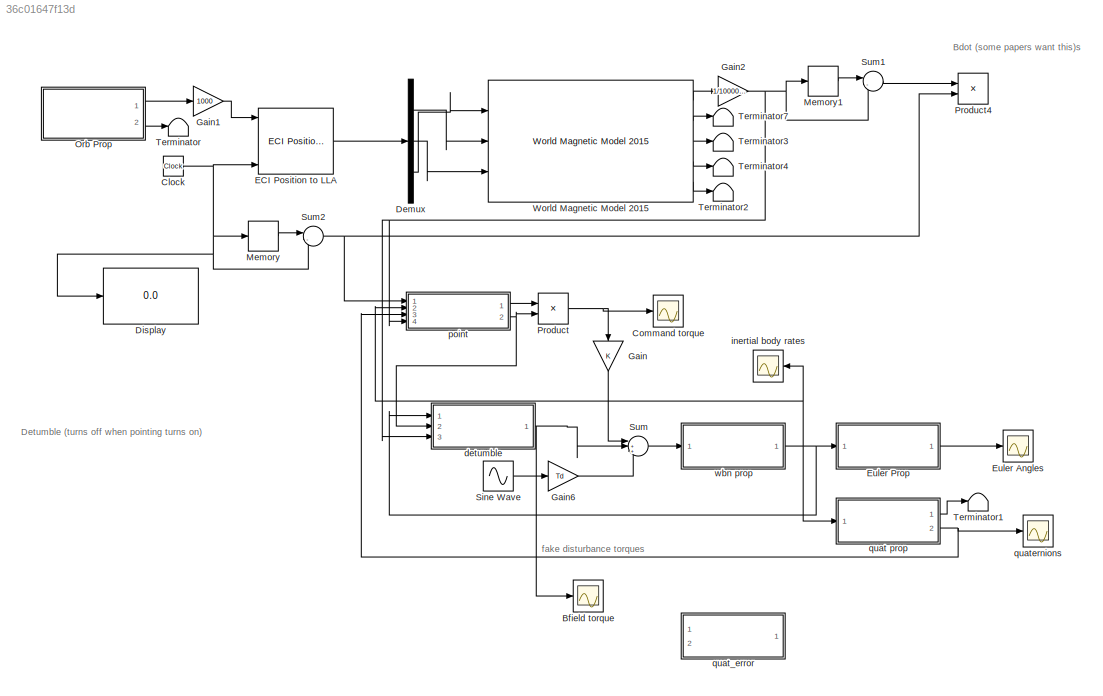
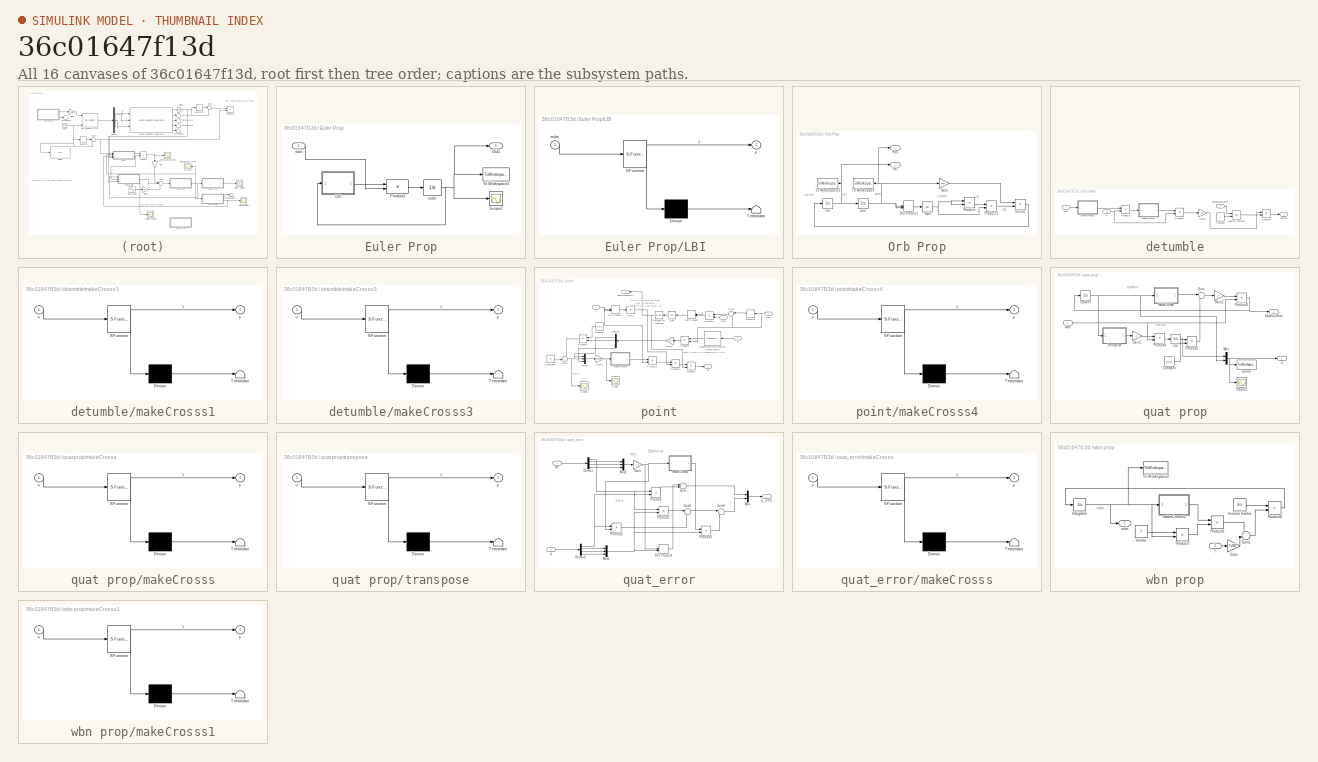
[diagram: thumbnail index - all 16 canvases of the model, root first then tree order]
MODEL slx_36c01647f13d
KIND model
CONFIG AbsTol = auto
CONFIG FixedStep = auto
CONFIG MaxStep = auto
CONFIG MinStep = auto
CONFIG RelTol = 1e-3
CONFIG SampleTimeConstraint = Unconstrained
CONFIG Solver = ode45
CONFIG SolverMode = Auto
CONFIG SolverName = ode45
CONFIG StartTime = 0.01
CONFIG StopTime = tprop
BLOCK [Scope] Bfield torque
  Ports = [1]
  ScopeSpecificationString = Simulink.scopes.TimeScopeBlockCfg('CurrentConfiguration', extmgr.ConfigurationSet(extmgr.Configuration('Core','General UI',true),extmgr.Configuration('Core','Source UI',true),extmgr.Configuration('Sources','WiredSimulink',true,'DataLoggingVariableName','ScopeData2'),extmgr.Configuration('Visuals','Time Domain',true,'SerializedDisplays',{struct('MinYLimReal','-0.000028','MaxYLimReal','0.000058','YL...<+1428ch>
BLOCK [Clock] Clock
BLOCK [Scope] Command torque
  Ports = [1]
  ScopeSpecificationString = Simulink.scopes.TimeScopeBlockCfg('CurrentConfiguration', extmgr.ConfigurationSet(extmgr.Configuration('Core','General UI',true),extmgr.Configuration('Core','Source UI',true),extmgr.Configuration('Sources','WiredSimulink',true,'DataLoggingVariableName','ScopeData1'),extmgr.Configuration('Visuals','Time Domain',true,'SerializedDisplays',{struct('MinYLimReal','-0.0036','MaxYLimReal','0.01275','YLabe...<+1463ch>
BLOCK [Demux] Demux
  DisplayOption = bar
  Outputs = 3
  Ports = [1, 3]
BLOCK [Display] Display
  Decimation = 1
  Ports = [1]
BLOCK [Reference] ECI Position to LLA  REF=aerolibtransform2/ECI Position to LLA
  AttributesFormatString = %<red>
  Ports = [6, 1]
  SourceBlock = aerolibtransform2/ECI Position to LLA
  SourceType = ECItoLLA
BLOCK [Scope] Euler Angles
  Ports = [1]
  ScopeSpecificationString = Simulink.scopes.TimeScopeBlockCfg('CurrentConfiguration', extmgr.ConfigurationSet(extmgr.Configuration('Core','General UI',true),extmgr.Configuration('Core','Source UI',true),extmgr.Configuration('Sources','WiredSimulink',true,'DataLoggingVariableName','ScopeData6'),extmgr.Configuration('Visuals','Time Domain',true,'SerializedDisplays',{struct('MinYLimReal','-79.20821','MaxYLimReal','20.09042','YL...<+1449ch>
BLOCK [SubSystem] Euler Prop
  Ports = [1, 1]
  RequestExecContextInheritance = off
  TreatAsAtomicUnit = on
  Variant = off
BLOCK [SubSystem] Euler Prop/LBI 
  ErrorFcn = Stateflow.Translate.translate
  PermitHierarchicalResolution = ExplicitOnly
  Ports = [1, 1]
  RequestExecContextInheritance = off
  SFBlockType = MATLAB Function
  TreatAsAtomicUnit = on
  Variant = off
BLOCK [Demux] Euler Prop/LBI / Demux 
  Outputs = 1
  Ports = [1, 1]
BLOCK [S-Function] Euler Prop/LBI / SFunction 
  EnableBusSupport = on
  FunctionName = sf_sfun
  PortCounts = [1 2]
  Ports = [1, 2]
  SFunctionDeploymentMode = off
  Tag = Stateflow S-Function BDot4 9
BLOCK [Terminator] Euler Prop/LBI / Terminator 
BLOCK [Inport] Euler Prop/LBI /euler
  IconDisplay = Port number
BLOCK [Outport] Euler Prop/LBI /y
  IconDisplay = Port number
BLOCK [Outport] Euler Prop/Out1
  IconDisplay = Port number
BLOCK [Product] Euler Prop/Product2
  InputSameDT = off
  Multiplication = Matrix(*)
  OutDataTypeStr = Inherit: Inherit via internal rule
  Ports = [2, 1]
  RndMeth = Floor
  SaturateOnIntegerOverflow = off
BLOCK [Scope] Euler Prop/Scope1
  Ports = [1]
  ScopeSpecificationString = C++SS(StrPVP('SaveName','ScopeData5'),StrPVP('LimitDataPoints','on'),StrPVP('DataFormat','Array'),StrPVP('Decimation','1'),StrPVP('BlockParamSampleInput','off'))
BLOCK [ToWorkspace] Euler Prop/To Workspace1
  FixptAsFi = on
  MaxDataPoints = inf
  Ports = [1]
  SampleTime = -1
  Save2DSignal = 3-D array (concatenate along third dimension)
  SaveFormat = Timeseries
  VariableName = euler
BLOCK [Integrator] Euler Prop/euler
  InitialCondition = euler0
  Ports = [1, 1]
BLOCK [Inport] Euler Prop/wbn
  IconDisplay = Port number
BLOCK [Gain] Gain
  OutDataTypeStr = Inherit: Inherit via internal rule
  ParamDataTypeStr = Inherit: Inherit via internal rule
  SaturateOnIntegerOverflow = off
BLOCK [Gain] Gain1
  Gain = 1000
  OutDataTypeStr = Inherit: Inherit via internal rule
  ParamDataTypeStr = Inherit: Inherit via internal rule
  SaturateOnIntegerOverflow = off
BLOCK [Gain] Gain2
  Gain = 1/1000000000
  OutDataTypeStr = Inherit: Inherit via internal rule
  ParamDataTypeStr = Inherit: Inherit via internal rule
  SaturateOnIntegerOverflow = off
BLOCK [Gain] Gain6
  Gain = Td
  OutDataTypeStr = Inherit: Inherit via internal rule
  ParamDataTypeStr = Inherit: Inherit via internal rule
  SaturateOnIntegerOverflow = off
BLOCK [Memory] Memory
  InheritSampleTime = on
  X0 = .0999999
BLOCK [Memory] Memory1
  InheritSampleTime = on
  X0 = [2.1e-9;-5.8e-9;1e-9]
BLOCK [SubSystem] Orb Prop
  Ports = [0, 2]
  RequestExecContextInheritance = off
  Variant = off
BLOCK [Product] Orb Prop/Divide
  InputSameDT = off
  Inputs = */
  OutDataTypeStr = Inherit: Inherit via internal rule
  Ports = [2, 1]
  RndMeth = Floor
  SaturateOnIntegerOverflow = off
BLOCK [DotProduct] Orb Prop/Dot Product
  OutDataTypeStr = Inherit: Inherit via internal rule
BLOCK [Gain] Orb Prop/Gain
  Gain = -mu
  OutDataTypeStr = Inherit: Inherit via internal rule
  ParamDataTypeStr = Inherit: Inherit via internal rule
  SaturateOnIntegerOverflow = off
BLOCK [Outport] Orb Prop/Pos
  IconDisplay = Port number
BLOCK [Product] Orb Prop/Product
  InputSameDT = off
  OutDataTypeStr = Inherit: Inherit via internal rule
  Ports = [2, 1]
  RndMeth = Floor
  SaturateOnIntegerOverflow = off
BLOCK [Product] Orb Prop/Product1
  InputSameDT = off
  OutDataTypeStr = Inherit: Inherit via internal rule
  Ports = [2, 1]
  RndMeth = Floor
  SaturateOnIntegerOverflow = off
BLOCK [Sqrt] Orb Prop/Sqrt
BLOCK [ToWorkspace] Orb Prop/To Workspace
  FixptAsFi = on
  MaxDataPoints = inf
  Ports = [1]
  SampleTime = -1
  Save2DSignal = 3-D array (concatenate along third dimension)
  SaveFormat = Timeseries
  VariableName = pos
BLOCK [ToWorkspace] Orb Prop/To Workspace3
  FixptAsFi = on
  MaxDataPoints = inf
  Ports = [1]
  SampleTime = -1
  Save2DSignal = 3-D array (concatenate along third dimension)
  SaveFormat = Timeseries
  VariableName = vel
BLOCK [Outport] Orb Prop/Vel
  IconDisplay = Port number
  Port = 2
BLOCK [Integrator] Orb Prop/pos
  InitialCondition = rvect
  Ports = [1, 1]
BLOCK [Integrator] Orb Prop/vel
  InitialCondition = vvect
  Ports = [1, 1]
BLOCK [Product] Product
  InputSameDT = off
  OutDataTypeStr = Inherit: Inherit via internal rule
  Ports = [2, 1]
  RndMeth = Floor
  SaturateOnIntegerOverflow = off
BLOCK [Product] Product4
  InputSameDT = off
  Inputs = */
  OutDataTypeStr = Inherit: Inherit via internal rule
  Ports = [2, 1]
  RndMeth = Floor
  SaturateOnIntegerOverflow = off
BLOCK [Sin] Sine Wave
  Amplitude = 1e-8
  Frequency = 100/T
  Ports = [0, 1]
  SampleTime = 0
BLOCK [Sum] Sum
  IconShape = round
  InputSameDT = off
  Inputs = |+++
  OutDataTypeStr = Inherit: Inherit via internal rule
  Ports = [3, 1]
  SaturateOnIntegerOverflow = off
BLOCK [Sum] Sum1
  IconShape = round
  InputSameDT = off
  Inputs = |-+
  OutDataTypeStr = Inherit: Inherit via internal rule
  Ports = [2, 1]
  SaturateOnIntegerOverflow = off
BLOCK [Sum] Sum2
  IconShape = round
  InputSameDT = off
  Inputs = |-+
  OutDataTypeStr = Inherit: Inherit via internal rule
  Ports = [2, 1]
  SaturateOnIntegerOverflow = off
BLOCK [Terminator] Terminator
BLOCK [Terminator] Terminator1
BLOCK [Terminator] Terminator2
BLOCK [Terminator] Terminator3
BLOCK [Terminator] Terminator4
BLOCK [Terminator] Terminator7
BLOCK [Reference] World Magnetic Model 2015  REF=aerolibgravity2/World Magnetic Model 2015
  Ports = [3, 5]
  SourceBlock = aerolibgravity2/World Magnetic Model 2015
  SourceType = WorldMagneticModel2015
BLOCK [SubSystem] detumble
  Ports = [3, 1]
  RequestExecContextInheritance = off
  Variant = off
BLOCK [Constant] detumble/Constant
BLOCK [Gain] detumble/Gain3
  Gain = -kd
  Multiplication = Matrix(K*u)
  OutDataTypeStr = Inherit: Inherit via internal rule
  ParamDataTypeStr = Inherit: Inherit via internal rule
  SaturateOnIntegerOverflow = off
BLOCK [Logic] detumble/Logical Operator
  AllPortsSameDT = off
  Operator = XOR
  OutDataTypeStr = boolean
  Ports = [2, 1]
BLOCK [Product] detumble/Product1
  InputSameDT = off
  Multiplication = Matrix(*)
  OutDataTypeStr = Inherit: Inherit via internal rule
  Ports = [2, 1]
  RndMeth = Floor
  SaturateOnIntegerOverflow = off
BLOCK [Product] detumble/Product2
  InputSameDT = off
  Multiplication = Matrix(*)
  OutDataTypeStr = Inherit: Inherit via internal rule
  Ports = [2, 1]
  RndMeth = Floor
  SaturateOnIntegerOverflow = off
BLOCK [Product] detumble/Product6
  InputSameDT = off
  OutDataTypeStr = Inherit: Inherit via internal rule
  Ports = [2, 1]
  RndMeth = Floor
  SaturateOnIntegerOverflow = off
BLOCK [Outport] detumble/Tbfield
  IconDisplay = Port number
BLOCK [Inport] detumble/b
  IconDisplay = Port number
  Port = 3
BLOCK [Inport] detumble/detumbleOnOff
  IconDisplay = Port number
  Port = 2
BLOCK [SubSystem] detumble/makeCrosss1
  ErrorFcn = Stateflow.Translate.translate
  PermitHierarchicalResolution = ExplicitOnly
  Ports = [1, 1]
  RequestExecContextInheritance = off
  SFBlockType = MATLAB Function
  TreatAsAtomicUnit = on
  Variant = off
BLOCK [Demux] detumble/makeCrosss1/ Demux 
  Outputs = 1
  Ports = [1, 1]
BLOCK [S-Function] detumble/makeCrosss1/ SFunction 
  EnableBusSupport = on
  FunctionName = sf_sfun
  PortCounts = [1 2]
  Ports = [1, 2]
  SFunctionDeploymentMode = off
  Tag = Stateflow S-Function BDot4 1
BLOCK [Terminator] detumble/makeCrosss1/ Terminator 
BLOCK [Inport] detumble/makeCrosss1/u
  IconDisplay = Port number
BLOCK [Outport] detumble/makeCrosss1/y
  IconDisplay = Port number
BLOCK [SubSystem] detumble/makeCrosss3
  ErrorFcn = Stateflow.Translate.translate
  PermitHierarchicalResolution = ExplicitOnly
  Ports = [1, 1]
  RequestExecContextInheritance = off
  SFBlockType = MATLAB Function
  TreatAsAtomicUnit = on
  Variant = off
BLOCK [Demux] detumble/makeCrosss3/ Demux 
  Outputs = 1
  Ports = [1, 1]
BLOCK [S-Function] detumble/makeCrosss3/ SFunction 
  EnableBusSupport = on
  FunctionName = sf_sfun
  PortCounts = [1 2]
  Ports = [1, 2]
  SFunctionDeploymentMode = off
  Tag = Stateflow S-Function BDot4 8
BLOCK [Terminator] detumble/makeCrosss3/ Terminator 
BLOCK [Inport] detumble/makeCrosss3/u
  IconDisplay = Port number
BLOCK [Outport] detumble/makeCrosss3/y
  IconDisplay = Port number
BLOCK [Inport] detumble/wbn
  IconDisplay = Port number
BLOCK [Scope] inertial body rates
  Ports = [1]
  ScopeSpecificationString = Simulink.scopes.TimeScopeBlockCfg('CurrentConfiguration', extmgr.ConfigurationSet(extmgr.Configuration('Core','General UI',true),extmgr.Configuration('Core','Source UI',true),extmgr.Configuration('Sources','WiredSimulink',true,'DataLoggingVariableName','ScopeData1'),extmgr.Configuration('Visuals','Time Domain',true,'SerializedDisplays',{struct('MinYLimReal','-0.09841','MaxYLimReal','0.04872','YLab...<+1465ch>
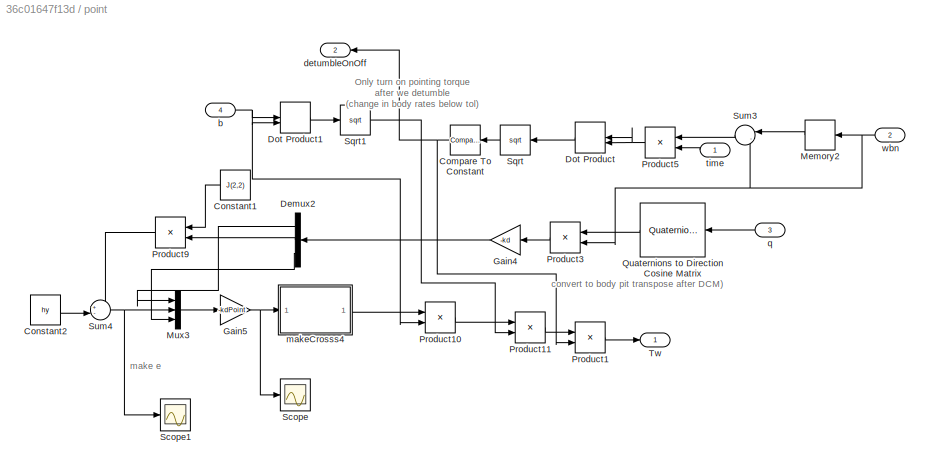
BLOCK [SubSystem] point
  Ports = [4, 2]
  RequestExecContextInheritance = off
  Variant = off
BLOCK [Reference] point/Compare To Constant  REF=simulink/Logic and Bit
Operations/Compare
To Constant
  Ports = [1, 1]
  SourceBlock = simulink/Logic and Bit\nOperations/Compare\nTo Constant
  SourceType = Compare To Constant
BLOCK [Constant] point/Constant1
  Value = J(2,2)
BLOCK [Constant] point/Constant2
  Value = hy
BLOCK [Demux] point/Demux2
  DisplayOption = bar
  Outputs = 3
  Ports = [1, 3]
BLOCK [DotProduct] point/Dot Product
  OutDataTypeStr = Inherit: Inherit via internal rule
BLOCK [DotProduct] point/Dot Product1
  OutDataTypeStr = Inherit: Inherit via internal rule
BLOCK [Gain] point/Gain4
  Gain = -kd
  Multiplication = Matrix(K*u)
  OutDataTypeStr = Inherit: Inherit via internal rule
  ParamDataTypeStr = Inherit: Inherit via internal rule
  SaturateOnIntegerOverflow = off
BLOCK [Gain] point/Gain5
  Gain = -kdPoint
  Multiplication = Matrix(K*u)
  OutDataTypeStr = Inherit: Inherit via internal rule
  ParamDataTypeStr = Inherit: Inherit via internal rule
  SaturateOnIntegerOverflow = off
BLOCK [Memory] point/Memory2
  InheritSampleTime = on
  X0 = wbn0+[.001;.001;.001]
BLOCK [Mux] point/Mux3
  DisplayOption = bar
  Inputs = 3
  Ports = [3, 1]
BLOCK [Product] point/Product1
  InputSameDT = off
  Inputs = **
  OutDataTypeStr = Inherit: Inherit via internal rule
  Ports = [2, 1]
  RndMeth = Floor
  SaturateOnIntegerOverflow = off
BLOCK [Product] point/Product10
  InputSameDT = off
  Multiplication = Matrix(*)
  OutDataTypeStr = Inherit: Inherit via internal rule
  Ports = [2, 1]
  RndMeth = Floor
  SaturateOnIntegerOverflow = off
BLOCK [Product] point/Product11
  InputSameDT = off
  Inputs = */
  OutDataTypeStr = Inherit: Inherit via internal rule
  Ports = [2, 1]
  RndMeth = Floor
  SaturateOnIntegerOverflow = off
BLOCK [Product] point/Product3
  InputSameDT = off
  Multiplication = Matrix(*)
  OutDataTypeStr = Inherit: Inherit via internal rule
  Ports = [2, 1]
  RndMeth = Floor
  SaturateOnIntegerOverflow = off
BLOCK [Product] point/Product5
  InputSameDT = off
  Inputs = */
  OutDataTypeStr = Inherit: Inherit via internal rule
  Ports = [2, 1]
  RndMeth = Floor
  SaturateOnIntegerOverflow = off
BLOCK [Product] point/Product9
  InputSameDT = off
  OutDataTypeStr = Inherit: Inherit via internal rule
  Ports = [2, 1]
  RndMeth = Floor
  SaturateOnIntegerOverflow = off
BLOCK [Reference] point/Quaternions to Direction Cosine Matrix  REF=aerolibtransform2/Quaternions to 
Direction Cosine Matrix
  Ports = [1, 1]
  SourceBlock = aerolibtransform2/Quaternions to \nDirection Cosine Matrix
  SourceType = Quaternion2DCM
BLOCK [Scope] point/Scope
  Ports = [1]
  ScopeSpecificationString = C++SS(StrPVP('SaveName','ScopeData1'))
BLOCK [Scope] point/Scope1
  Ports = [1]
  ScopeSpecificationString = C++SS(StrPVP('SaveName','ScopeData2'))
BLOCK [Sqrt] point/Sqrt
BLOCK [Sqrt] point/Sqrt1
BLOCK [Sum] point/Sum3
  IconShape = round
  InputSameDT = off
  Inputs = |-+
  OutDataTypeStr = Inherit: Inherit via internal rule
  Ports = [2, 1]
  SaturateOnIntegerOverflow = off
BLOCK [Sum] point/Sum4
  IconShape = round
  InputSameDT = off
  Inputs = +-|
  OutDataTypeStr = Inherit: Inherit via internal rule
  Ports = [2, 1]
  SaturateOnIntegerOverflow = off
BLOCK [Outport] point/Tw
  IconDisplay = Port number
BLOCK [Inport] point/b
  IconDisplay = Port number
  Port = 4
BLOCK [Outport] point/detumbleOnOff
  IconDisplay = Port number
  Port = 2
BLOCK [SubSystem] point/makeCrosss4
  ErrorFcn = Stateflow.Translate.translate
  PermitHierarchicalResolution = ExplicitOnly
  Ports = [1, 1]
  RequestExecContextInheritance = off
  SFBlockType = MATLAB Function
  TreatAsAtomicUnit = on
  Variant = off
BLOCK [Demux] point/makeCrosss4/ Demux 
  Outputs = 1
  Ports = [1, 1]
BLOCK [S-Function] point/makeCrosss4/ SFunction 
  EnableBusSupport = on
  FunctionName = sf_sfun
  PortCounts = [1 2]
  Ports = [1, 2]
  SFunctionDeploymentMode = off
  Tag = Stateflow S-Function BDot4 7
BLOCK [Terminator] point/makeCrosss4/ Terminator 
BLOCK [Inport] point/makeCrosss4/u
  IconDisplay = Port number
BLOCK [Outport] point/makeCrosss4/y
  IconDisplay = Port number
BLOCK [Inport] point/q
  IconDisplay = Port number
  Port = 3
BLOCK [Inport] point/time
  IconDisplay = Port number
BLOCK [Inport] point/wbn
  IconDisplay = Port number
  Port = 2
BLOCK [SubSystem] quat prop
  Ports = [1, 2]
  RequestExecContextInheritance = off
  Variant = off
BLOCK [Constant] quat prop/Constant
  Value = eye(3)
BLOCK [Outport] quat prop/EpsilonDots
  IconDisplay = Port number
BLOCK [Gain] quat prop/Gain1
  Gain = -.5
  OutDataTypeStr = Inherit: Inherit via internal rule
  ParamDataTypeStr = Inherit: Inherit via internal rule
  SaturateOnIntegerOverflow = off
BLOCK [Gain] quat prop/Gain2
  Gain = .5
  OutDataTypeStr = Inherit: Inherit via internal rule
  ParamDataTypeStr = Inherit: Inherit via internal rule
  SaturateOnIntegerOverflow = off
BLOCK [Mux] quat prop/Mux
  DisplayOption = bar
  Inputs = 2
  Ports = [2, 1]
BLOCK [Product] quat prop/Product3
  InputSameDT = off
  Multiplication = Matrix(*)
  OutDataTypeStr = Inherit: Inherit via internal rule
  Ports = [2, 1]
  RndMeth = Floor
  SaturateOnIntegerOverflow = off
BLOCK [Product] quat prop/Product4
  InputSameDT = off
  Multiplication = Matrix(*)
  OutDataTypeStr = Inherit: Inherit via internal rule
  Ports = [2, 1]
  RndMeth = Floor
  SaturateOnIntegerOverflow = off
BLOCK [Product] quat prop/Product5
  InputSameDT = off
  OutDataTypeStr = Inherit: Inherit via internal rule
  Ports = [2, 1]
  RndMeth = Floor
  SaturateOnIntegerOverflow = off
BLOCK [Scope] quat prop/Scope2
  Ports = [1]
  ScopeSpecificationString = C++SS(StrPVP('SaveName','ScopeData1'),StrPVP('LimitDataPoints','on'),StrPVP('DataFormat','Array'),StrPVP('Decimation','1'),StrPVP('BlockParamSampleInput','off'))
BLOCK [Sum] quat prop/Sum
  IconShape = round
  InputSameDT = off
  Inputs = |++
  OutDataTypeStr = Inherit: Inherit via internal rule
  Ports = [2, 1]
  SaturateOnIntegerOverflow = off
BLOCK [Integrator] quat prop/epsilon
  InitialCondition = epsilon0
  Ports = [1, 1]
BLOCK [Integrator] quat prop/eta
  InitialCondition = eta0
  Ports = [1, 1]
BLOCK [SubSystem] quat prop/makeCrosss
  ErrorFcn = Stateflow.Translate.translate
  PermitHierarchicalResolution = ExplicitOnly
  Ports = [1, 1]
  RequestExecContextInheritance = off
  SFBlockType = MATLAB Function
  TreatAsAtomicUnit = on
  Variant = off
BLOCK [Demux] quat prop/makeCrosss/ Demux 
  Outputs = 1
  Ports = [1, 1]
BLOCK [S-Function] quat prop/makeCrosss/ SFunction 
  EnableBusSupport = on
  FunctionName = sf_sfun
  PortCounts = [1 2]
  Ports = [1, 2]
  SFunctionDeploymentMode = off
  Tag = Stateflow S-Function BDot4 3
BLOCK [Terminator] quat prop/makeCrosss/ Terminator 
BLOCK [Inport] quat prop/makeCrosss/u
  IconDisplay = Port number
BLOCK [Outport] quat prop/makeCrosss/y
  IconDisplay = Port number
BLOCK [Outport] quat prop/q
  IconDisplay = Port number
  Port = 2
BLOCK [ToWorkspace] quat prop/quats
  FixptAsFi = on
  MaxDataPoints = inf
  Ports = [1]
  SampleTime = -1
  Save2DSignal = 3-D array (concatenate along third dimension)
  SaveFormat = Timeseries
  VariableName = quat
BLOCK [SubSystem] quat prop/transpose
  ErrorFcn = Stateflow.Translate.translate
  PermitHierarchicalResolution = ExplicitOnly
  Ports = [1, 1]
  RequestExecContextInheritance = off
  SFBlockType = MATLAB Function
  TreatAsAtomicUnit = on
  Variant = off
BLOCK [Demux] quat prop/transpose/ Demux 
  Outputs = 1
  Ports = [1, 1]
BLOCK [S-Function] quat prop/transpose/ SFunction 
  EnableBusSupport = on
  FunctionName = sf_sfun
  PortCounts = [1 2]
  Ports = [1, 2]
  SFunctionDeploymentMode = off
  Tag = Stateflow S-Function BDot4 6
BLOCK [Terminator] quat prop/transpose/ Terminator 
BLOCK [Inport] quat prop/transpose/u
  IconDisplay = Port number
BLOCK [Outport] quat prop/transpose/y
  IconDisplay = Port number
BLOCK [Inport] quat prop/wbn
  IconDisplay = Port number
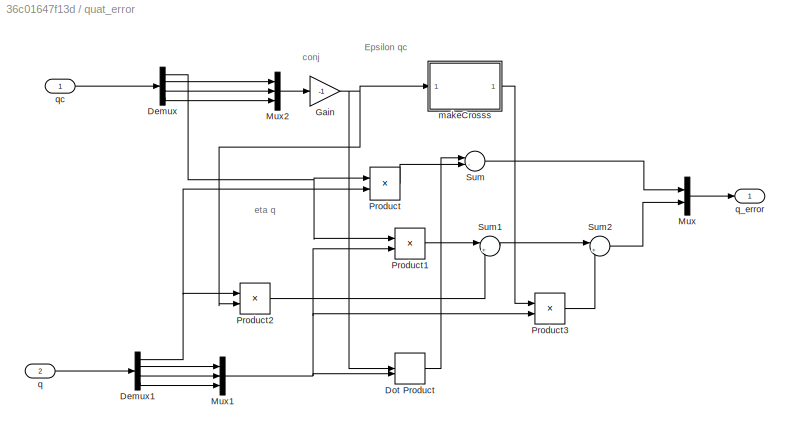
BLOCK [SubSystem] quat_error
  Ports = [2, 1]
  RequestExecContextInheritance = off
  Variant = off
BLOCK [Demux] quat_error/Demux
  DisplayOption = bar
  Ports = [1, 4]
BLOCK [Demux] quat_error/Demux1
  DisplayOption = bar
  Ports = [1, 4]
BLOCK [DotProduct] quat_error/Dot Product
  OutDataTypeStr = Inherit: Inherit via internal rule
BLOCK [Gain] quat_error/Gain
  Gain = -1
  OutDataTypeStr = Inherit: Inherit via internal rule
  ParamDataTypeStr = Inherit: Inherit via internal rule
  SaturateOnIntegerOverflow = off
BLOCK [Mux] quat_error/Mux
  DisplayOption = bar
  Inputs = 2
  Ports = [2, 1]
BLOCK [Mux] quat_error/Mux1
  DisplayOption = bar
  Inputs = 3
  Ports = [3, 1]
BLOCK [Mux] quat_error/Mux2
  DisplayOption = bar
  Inputs = 3
  Ports = [3, 1]
BLOCK [Product] quat_error/Product
  InputSameDT = off
  OutDataTypeStr = Inherit: Inherit via internal rule
  Ports = [2, 1]
  RndMeth = Floor
  SaturateOnIntegerOverflow = off
BLOCK [Product] quat_error/Product1
  InputSameDT = off
  OutDataTypeStr = Inherit: Inherit via internal rule
  Ports = [2, 1]
  RndMeth = Floor
  SaturateOnIntegerOverflow = off
BLOCK [Product] quat_error/Product2
  InputSameDT = off
  OutDataTypeStr = Inherit: Inherit via internal rule
  Ports = [2, 1]
  RndMeth = Floor
  SaturateOnIntegerOverflow = off
BLOCK [Product] quat_error/Product3
  InputSameDT = off
  Multiplication = Matrix(*)
  OutDataTypeStr = Inherit: Inherit via internal rule
  Ports = [2, 1]
  RndMeth = Floor
  SaturateOnIntegerOverflow = off
BLOCK [Sum] quat_error/Sum
  IconShape = round
  InputSameDT = off
  Inputs = |-+
  OutDataTypeStr = Inherit: Inherit via internal rule
  Ports = [2, 1]
  SaturateOnIntegerOverflow = off
BLOCK [Sum] quat_error/Sum1
  IconShape = round
  InputSameDT = off
  Inputs = |++
  OutDataTypeStr = Inherit: Inherit via internal rule
  Ports = [2, 1]
  SaturateOnIntegerOverflow = off
BLOCK [Sum] quat_error/Sum2
  IconShape = round
  InputSameDT = off
  Inputs = |++
  OutDataTypeStr = Inherit: Inherit via internal rule
  Ports = [2, 1]
  SaturateOnIntegerOverflow = off
BLOCK [SubSystem] quat_error/makeCrosss
  ErrorFcn = Stateflow.Translate.translate
  PermitHierarchicalResolution = ExplicitOnly
  Ports = [1, 1]
  RequestExecContextInheritance = off
  SFBlockType = MATLAB Function
  TreatAsAtomicUnit = on
  Variant = off
BLOCK [Demux] quat_error/makeCrosss/ Demux 
  Outputs = 1
  Ports = [1, 1]
BLOCK [S-Function] quat_error/makeCrosss/ SFunction 
  EnableBusSupport = on
  FunctionName = sf_sfun
  PortCounts = [1 2]
  Ports = [1, 2]
  SFunctionDeploymentMode = off
  Tag = Stateflow S-Function BDot4 2
BLOCK [Terminator] quat_error/makeCrosss/ Terminator 
BLOCK [Inport] quat_error/makeCrosss/u
  IconDisplay = Port number
BLOCK [Outport] quat_error/makeCrosss/y
  IconDisplay = Port number
BLOCK [Inport] quat_error/q
  IconDisplay = Port number
  Port = 2
BLOCK [Outport] quat_error/q_error
  IconDisplay = Port number
BLOCK [Inport] quat_error/qc
  IconDisplay = Port number
BLOCK [Scope] quaternions
  Ports = [1]
  ScopeSpecificationString = Simulink.scopes.TimeScopeBlockCfg('CurrentConfiguration', extmgr.ConfigurationSet(extmgr.Configuration('Core','General UI',true),extmgr.Configuration('Core','Source UI',true),extmgr.Configuration('Sources','WiredSimulink',true,'DataLoggingVariableName','ScopeData3'),extmgr.Configuration('Visuals','Time Domain',true,'SerializedDisplays',{struct('MinYLimReal','-1.22706','MaxYLimReal','1.22156','YLab...<+1490ch>
BLOCK [SubSystem] wbn prop
  Ports = [1, 1]
  RequestExecContextInheritance = off
  Variant = off
BLOCK [Gain] wbn prop/Gain
  Gain = TcON
  OutDataTypeStr = Inherit: Inherit via internal rule
  ParamDataTypeStr = Inherit: Inherit via internal rule
  SaturateOnIntegerOverflow = off
BLOCK [Constant] wbn prop/Inertia
  Value = J
BLOCK [Integrator] wbn prop/Integrator
  InitialCondition = wbn0
  Ports = [1, 1]
BLOCK [Constant] wbn prop/Inverse Inertia
  Value = Jinv
BLOCK [Product] wbn prop/Product6
  InputSameDT = off
  Multiplication = Matrix(*)
  OutDataTypeStr = Inherit: Inherit via internal rule
  Ports = [2, 1]
  RndMeth = Floor
  SaturateOnIntegerOverflow = off
BLOCK [Product] wbn prop/Product7
  InputSameDT = off
  Multiplication = Matrix(*)
  OutDataTypeStr = Inherit: Inherit via internal rule
  Ports = [2, 1]
  RndMeth = Floor
  SaturateOnIntegerOverflow = off
BLOCK [Product] wbn prop/Product8
  InputSameDT = off
  Multiplication = Matrix(*)
  OutDataTypeStr = Inherit: Inherit via internal rule
  Ports = [2, 1]
  RndMeth = Floor
  SaturateOnIntegerOverflow = off
BLOCK [Sum] wbn prop/Sum1
  IconShape = round
  InputSameDT = off
  Inputs = +-
  OutDataTypeStr = Inherit: Inherit via internal rule
  Ports = [2, 1]
  SaturateOnIntegerOverflow = off
BLOCK [Inport] wbn prop/T
  IconDisplay = Port number
BLOCK [ToWorkspace] wbn prop/To Workspace2
  FixptAsFi = on
  MaxDataPoints = inf
  Ports = [1]
  SampleTime = -1
  Save2DSignal = 3-D array (concatenate along third dimension)
  SaveFormat = Timeseries
  VariableName = wbn
BLOCK [SubSystem] wbn prop/makeCrosss1
  ErrorFcn = Stateflow.Translate.translate
  PermitHierarchicalResolution = ExplicitOnly
  Ports = [1, 1]
  RequestExecContextInheritance = off
  SFBlockType = MATLAB Function
  TreatAsAtomicUnit = on
  Variant = off
BLOCK [Demux] wbn prop/makeCrosss1/ Demux 
  Outputs = 1
  Ports = [1, 1]
BLOCK [S-Function] wbn prop/makeCrosss1/ SFunction 
  EnableBusSupport = on
  FunctionName = sf_sfun
  PortCounts = [1 2]
  Ports = [1, 2]
  SFunctionDeploymentMode = off
  Tag = Stateflow S-Function BDot4 4
BLOCK [Terminator] wbn prop/makeCrosss1/ Terminator 
BLOCK [Inport] wbn prop/makeCrosss1/u
  IconDisplay = Port number
BLOCK [Outport] wbn prop/makeCrosss1/y
  IconDisplay = Port number
BLOCK [Outport] wbn prop/wbn
  IconDisplay = Port number
ANNOTATION (root): Bdot (some papers want this)s
ANNOTATION (root): Detumble (turns off when pointing turns on)
ANNOTATION (root): fake disturbance torques
ANNOTATION Orb Prop: accel
ANNOTATION Orb Prop: pos
ANNOTATION Orb Prop: r norm
ANNOTATION Orb Prop: r^2
ANNOTATION Orb Prop: r^3
ANNOTATION Orb Prop: vel
ANNOTATION point: Only turn on pointing torque after we detumble (change in body rates below tol)
ANNOTATION point: convert to body pit transpose after DCM)
ANNOTATION point: make e
ANNOTATION quat prop: epsilon
ANNOTATION quat prop: eta dot
ANNOTATION quat_error: Epsilon qc
ANNOTATION quat_error: conj
ANNOTATION quat_error: eta q
ANNOTATION wbn prop: wbn
NET Clock:1 -> Display:1, ECI Position to LLA:6, Memory:1, Sum2:2
LINE Demux:1 -> World Magnetic Model 2015:2
LINE Demux:2 -> World Magnetic Model 2015:3
LINE Demux:3 -> World Magnetic Model 2015:1
LINE ECI Position to LLA:1 -> Demux:1
LINE Euler Prop/LBI :1 -> Euler Prop/Product2:1
LINE Euler Prop/Product2:1 -> Euler Prop/euler:1
NET Euler Prop/euler:1 -> Euler Prop/LBI :1, Euler Prop/Out1:1, Euler Prop/Scope1:1, Euler Prop/To Workspace1:1
LINE Euler Prop/wbn:1 -> Euler Prop/Product2:2
LINE Euler Prop:1 -> Euler Angles:1
LINE Gain1:1 -> ECI Position to LLA:1
NET Gain2:1 -> Memory1:1, Sum1:2, detumble:3, point:4
LINE Gain6:1 -> Sum:3
LINE Gain:1 -> Sum:1
LINE Memory1:1 -> Sum1:1
LINE Memory:1 -> Sum2:1
LINE Orb Prop/Divide:1 -> Orb Prop/vel:1
LINE Orb Prop/Dot Product:1 -> Orb Prop/Sqrt:1
LINE Orb Prop/Gain:1 -> Orb Prop/Divide:1
LINE Orb Prop/Product1:1 -> Orb Prop/Divide:2
LINE Orb Prop/Product:1 -> Orb Prop/Product1:1
NET Orb Prop/Sqrt:1 -> Orb Prop/Product1:2, Orb Prop/Product:1, Orb Prop/Product:2
NET Orb Prop/pos:1 -> Orb Prop/Dot Product:1, Orb Prop/Dot Product:2, Orb Prop/Gain:1, Orb Prop/Pos:1, Orb Prop/To Workspace:1
NET Orb Prop/vel:1 -> Orb Prop/To Workspace3:1, Orb Prop/Vel:1, Orb Prop/pos:1
LINE Orb Prop:1 -> Gain1:1
LINE Orb Prop:2 -> Terminator:1
NET Product:1 -> Command torque:1, Gain:1
LINE Sine Wave:1 -> Gain6:1
LINE Sum1:1 -> Product4:1
NET Sum2:1 -> Product4:2, point:1
LINE Sum:1 -> wbn prop:1
LINE World Magnetic Model 2015:1 -> Gain2:1
LINE World Magnetic Model 2015:2 -> Terminator7:1
LINE World Magnetic Model 2015:3 -> Terminator3:1
LINE World Magnetic Model 2015:4 -> Terminator4:1
LINE World Magnetic Model 2015:5 -> Terminator2:1
LINE detumble/Constant:1 -> detumble/Logical Operator:2
LINE detumble/Gain3:1 -> detumble/Product6:1
LINE detumble/Logical Operator:1 -> detumble/Product6:2
LINE detumble/Product1:1 -> detumble/makeCrosss1:1
LINE detumble/Product2:1 -> detumble/Gain3:1
LINE detumble/Product6:1 -> detumble/Tbfield:1
NET detumble/b:1 -> detumble/Product1:2, detumble/Product2:2
LINE detumble/detumbleOnOff:1 -> detumble/Logical Operator:1
LINE detumble/makeCrosss1:1 -> detumble/Product2:1
LINE detumble/makeCrosss3:1 -> detumble/Product1:1
LINE detumble/wbn:1 -> detumble/makeCrosss3:1
NET detumble:1 -> Bfield torque:1, Sum:2
NET point/Compare To Constant:1 -> point/Product1:2, point/detumbleOnOff:1
LINE point/Constant1:1 -> point/Product9:1
LINE point/Constant2:1 -> point/Sum4:2
LINE point/Demux2:1 -> point/Mux3:1
LINE point/Demux2:2 -> point/Product9:2
LINE point/Demux2:3 -> point/Mux3:3
LINE point/Dot Product1:1 -> point/Sqrt1:1
LINE point/Dot Product:1 -> point/Sqrt:1
LINE point/Gain4:1 -> point/Demux2:1
NET point/Gain5:1 -> point/Scope:1, point/makeCrosss4:1
LINE point/Memory2:1 -> point/Sum3:1
LINE point/Mux3:1 -> point/Gain5:1
LINE point/Product10:1 -> point/Product11:1
LINE point/Product11:1 -> point/Product1:1
LINE point/Product1:1 -> point/Tw:1
LINE point/Product3:1 -> point/Gain4:1
NET point/Product5:1 -> point/Dot Product:1, point/Dot Product:2
LINE point/Product9:1 -> point/Sum4:1
LINE point/Quaternions to Direction Cosine Matrix:1 -> point/Product3:1
LINE point/Sqrt1:1 -> point/Product11:2
LINE point/Sqrt:1 -> point/Compare To Constant:1
LINE point/Sum3:1 -> point/Product5:1
NET point/Sum4:1 -> point/Mux3:2, point/Scope1:1
NET point/b:1 -> point/Dot Product1:1, point/Dot Product1:2, point/Product10:2
LINE point/makeCrosss4:1 -> point/Product10:1
LINE point/q:1 -> point/Quaternions to Direction Cosine Matrix:1
LINE point/time:1 -> point/Product5:2
NET point/wbn:1 -> point/Memory2:1, point/Product3:2, point/Sum3:2
LINE point:1 -> Product:1
NET point:2 -> Product:2, detumble:2
LINE quat prop/Constant:1 -> quat prop/Product5:2
LINE quat prop/Gain1:1 -> quat prop/Product4:1
LINE quat prop/Gain2:1 -> quat prop/Product3:1
NET quat prop/Mux:1 -> quat prop/Scope2:1, quat prop/q:1, quat prop/quats:1
NET quat prop/Product3:1 -> quat prop/EpsilonDots:1, quat prop/epsilon:1
LINE quat prop/Product4:1 -> quat prop/eta:1
LINE quat prop/Product5:1 -> quat prop/Sum:2
LINE quat prop/Sum:1 -> quat prop/Gain2:1
NET quat prop/epsilon:1 -> quat prop/Mux:2, quat prop/makeCrosss:1, quat prop/transpose:1
NET quat prop/eta:1 -> quat prop/Mux:1, quat prop/Product5:1
LINE quat prop/makeCrosss:1 -> quat prop/Sum:1
LINE quat prop/transpose:1 -> quat prop/Gain1:1
NET quat prop/wbn:1 -> quat prop/Product3:2, quat prop/Product4:2
LINE quat prop:1 -> Terminator1:1
NET quat prop:2 -> point:3, quaternions:1
NET quat_error/Demux1:1 -> quat_error/Product2:1, quat_error/Product:2
LINE quat_error/Demux1:2 -> quat_error/Mux1:1
LINE quat_error/Demux1:3 -> quat_error/Mux1:2
LINE quat_error/Demux1:4 -> quat_error/Mux1:3
NET quat_error/Demux:1 -> quat_error/Product1:1, quat_error/Product:1
LINE quat_error/Demux:2 -> quat_error/Mux2:1
LINE quat_error/Demux:3 -> quat_error/Mux2:2
LINE quat_error/Demux:4 -> quat_error/Mux2:3
LINE quat_error/Dot Product:1 -> quat_error/Sum:1
NET quat_error/Gain:1 -> quat_error/Dot Product:1, quat_error/Product2:2, quat_error/makeCrosss:1
NET quat_error/Mux1:1 -> quat_error/Dot Product:2, quat_error/Product1:2, quat_error/Product3:2
LINE quat_error/Mux2:1 -> quat_error/Gain:1
LINE quat_error/Mux:1 -> quat_error/q_error:1
LINE quat_error/Product1:1 -> quat_error/Sum1:1
LINE quat_error/Product2:1 -> quat_error/Sum1:2
LINE quat_error/Product3:1 -> quat_error/Sum2:2
LINE quat_error/Product:1 -> quat_error/Sum:2
LINE quat_error/Sum1:1 -> quat_error/Sum2:1
LINE quat_error/Sum2:1 -> quat_error/Mux:2
LINE quat_error/Sum:1 -> quat_error/Mux:1
LINE quat_error/makeCrosss:1 -> quat_error/Product3:1
LINE quat_error/q:1 -> quat_error/Demux1:1
LINE quat_error/qc:1 -> quat_error/Demux:1
LINE wbn prop/Gain:1 -> wbn prop/Sum1:2
LINE wbn prop/Inertia:1 -> wbn prop/Product7:1
NET wbn prop/Integrator:1 -> wbn prop/Product7:2, wbn prop/To Workspace2:1, wbn prop/makeCrosss1:1, wbn prop/wbn:1
LINE wbn prop/Inverse Inertia:1 -> wbn prop/Product8:1
LINE wbn prop/Product6:1 -> wbn prop/Sum1:1
LINE wbn prop/Product7:1 -> wbn prop/Product6:2
LINE wbn prop/Product8:1 -> wbn prop/Integrator:1
LINE wbn prop/Sum1:1 -> wbn prop/Product8:2
LINE wbn prop/T:1 -> wbn prop/Gain:1
LINE wbn prop/makeCrosss1:1 -> wbn prop/Product6:1
NET wbn prop:1 -> Euler Prop:1, detumble:1, inertial body rates:1, point:2, quat prop:1
note: NET lines group one-source signal fan-out (src -> all destinations, sorted); 1:1 wires keep LINE
CHART detumble/makeCrosss1 states=1 transitions=1
  STATE_LABEL 'eML_blk_kernel()'
  STATE_LABEL 'SCRIPT:\nfunction y = fcn(u)\n%#codegen\nEx = u(1);\nEy = u(2);\nEz = u(3);\n\ny = [0 -Ez Ey; Ez 0 -Ex; -Ey Ex 0];'
CHART quat_error/makeCrosss states=1 transitions=1
  STATE_LABEL 'eML_blk_kernel()'
  STATE_LABEL 'SCRIPT:\nfunction y = fcn(u)\n%#codegen\nEx = u(1);\nEy = u(2);\nEz = u(3);\n\ny = [0 -Ez Ey; Ez 0 -Ex; -Ey Ex 0];'
CHART quat prop/makeCrosss states=1 transitions=1
  STATE_LABEL 'eML_blk_kernel()'
  STATE_LABEL 'SCRIPT:\nfunction y = fcn(u)\n%#codegen\nEx = u(1);\nEy = u(2);\nEz = u(3);\n\ny = [0 -Ez Ey; Ez 0 -Ex; -Ey Ex 0];'
CHART wbn prop/makeCrosss1 states=1 transitions=1
  STATE_LABEL 'eML_blk_kernel()'
  STATE_LABEL 'SCRIPT:\nfunction y = fcn(u)\n%#codegen\nEx = u(1);\nEy = u(2);\nEz = u(3);\n\ny = [0 -Ez Ey; Ez 0 -Ex; -Ey Ex 0];'
CHART quat prop/transpose states=1 transitions=1
  STATE_LABEL 'eML_blk_kernel()'
  STATE_LABEL "SCRIPT:\nfunction y = fcn(u)\n%#codegen\n\ny = u';"
CHART point/makeCrosss4 states=1 transitions=1
  STATE_LABEL 'eML_blk_kernel()'
  STATE_LABEL 'SCRIPT:\nfunction y = fcn(u)\n%#codegen\nEx = u(1);\nEy = u(2);\nEz = u(3);\n\ny = [0 -Ez Ey; Ez 0 -Ex; -Ey Ex 0];'
CHART detumble/makeCrosss3 states=1 transitions=1
  STATE_LABEL 'eML_blk_kernel()'
  STATE_LABEL 'SCRIPT:\nfunction y = fcn(u)\n%#codegen\nEx = u(1);\nEy = u(2);\nEz = u(3);\n\ny = [0 -Ez Ey; Ez 0 -Ex; -Ey Ex 0];'
CHART Euler Prop/LBI  states=1 transitions=1
  STATE_LABEL 'eML_blk_kernel()'
  STATE_LABEL 'SCRIPT:\nfunction y = fcn(euler)\n%#codegen\nphi = euler(1);\ntheta = euler(2);\ny = LBI(theta, phi);'
